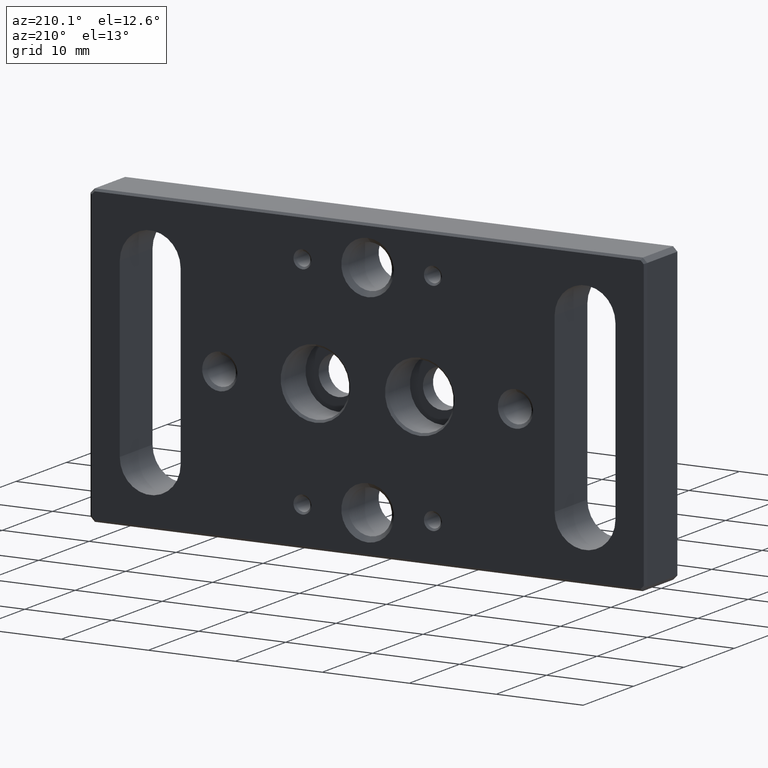
[diagram: clean part render]
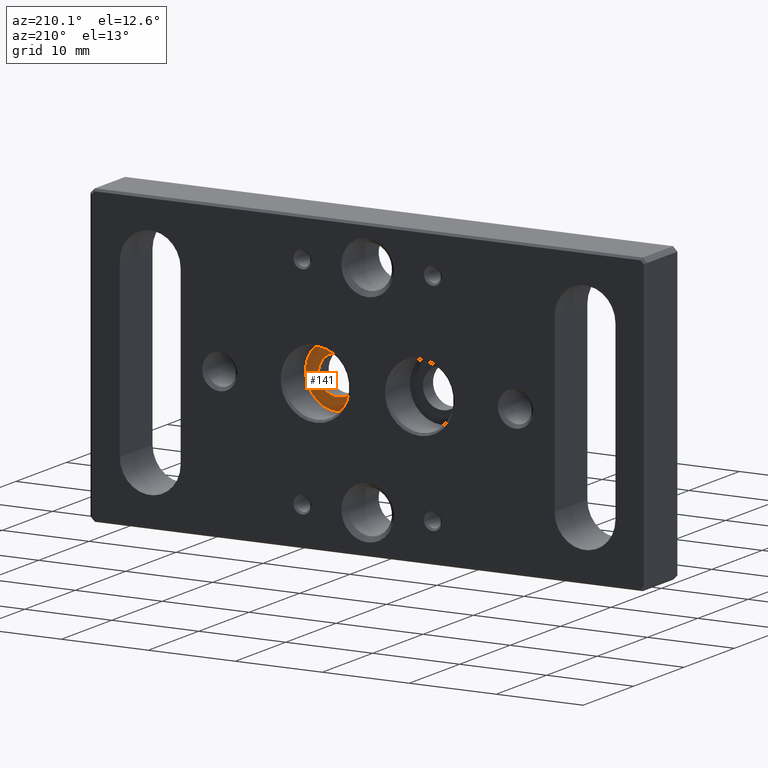
[diagram: same view with one face highlighted and labeled with its STEP entity id]
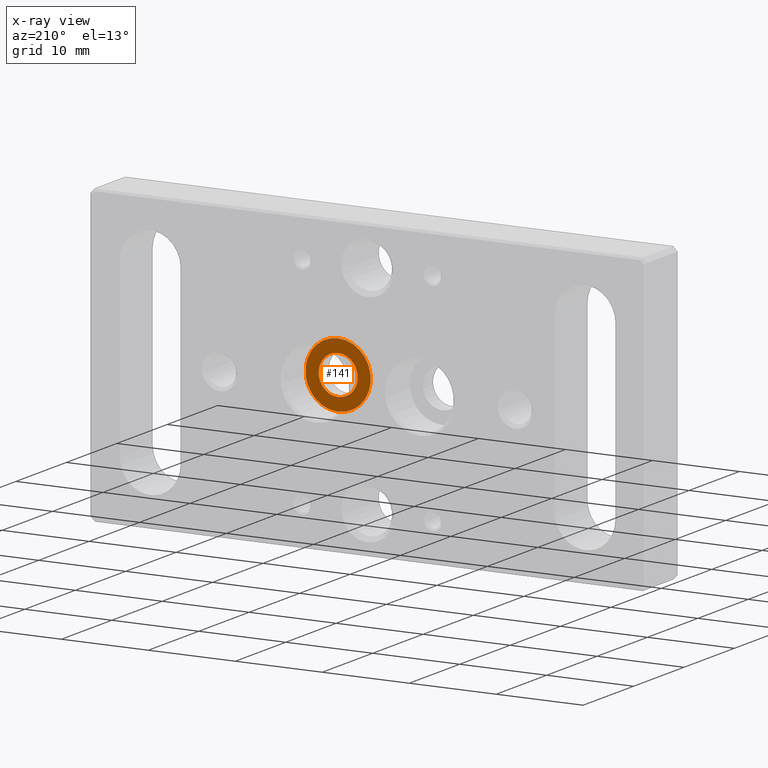
[diagram: x-ray of the same camera — body ghosted, the highlighted face saturated]
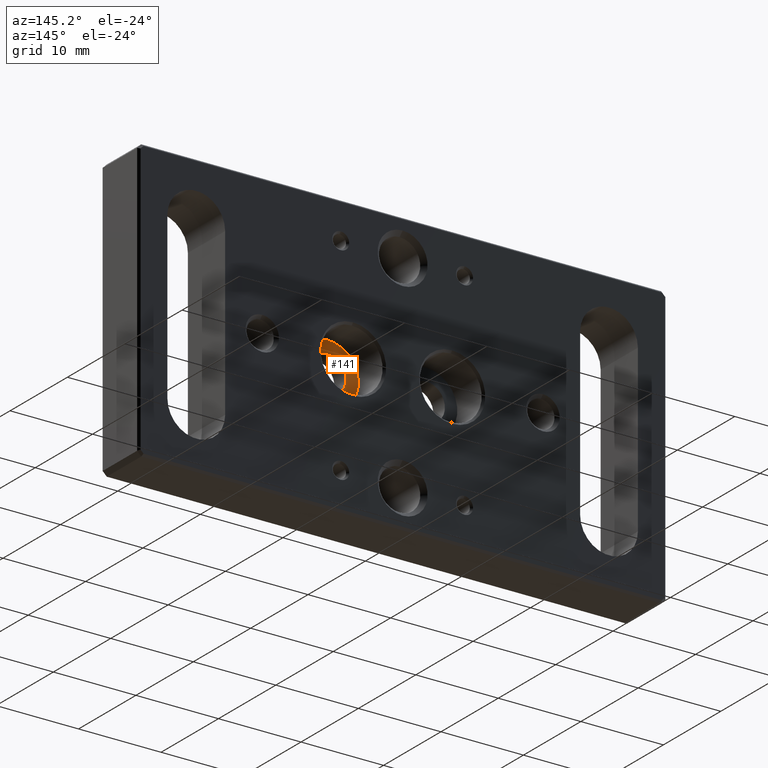
[diagram: same view with one face highlighted and labeled with its STEP entity id]
A machine part, auxiliary view. The second image highlights one B-rep face of the part: STEP entity #141.
The next image is the same camera in x-ray: the body ghosted, the highlighted face saturated — about 0% of this face is hidden behind the body in this view.
A second angle (auxiliary view) of the same face is appended — the face is thin or edge-on in the first view.
In plain terms, the highlighted planar face has unit normal (0, -1, 0).
Its self-contained STEP definition (entity closure, byte-faithful):
#141 = ADVANCED_FACE ( 'NONE', ( #1182, #941 ), #1090, .F. ) ;
#181 = AXIS2_PLACEMENT_3D ( 'NONE', #559, #803, #683 ) ;
#212 = CARTESIAN_POINT ( 'NONE',  ( 5.999999999999999112, 2.000000000000000000, 2.250000000000011546 ) ) ;
#271 = AXIS2_PLACEMENT_3D ( 'NONE', #523, #1031, #1541 ) ;
#287 = EDGE_CURVE ( 'NONE', #703, #703, #896, .T. ) ;
#523 = CARTESIAN_POINT ( 'NONE',  ( 5.999999999999999112, 2.000000000000000000, 0.000000000000000000 ) ) ;
#557 = CARTESIAN_POINT ( 'NONE',  ( 8.250000000000010658, 2.000000000000000000, 0.000000000000000000 ) ) ;
#559 = CARTESIAN_POINT ( 'NONE',  ( 5.999999999999999112, 2.000000000000000000, 0.000000000000000000 ) ) ;
#621 = ORIENTED_EDGE ( 'NONE', *, *, #287, .F. ) ;
#683 = DIRECTION ( 'NONE',  ( 0.000000000000000000, 0.000000000000000000, 1.000000000000000000 ) ) ;
#692 = EDGE_LOOP ( 'NONE', ( #621 ) ) ;
#703 = VERTEX_POINT ( 'NONE', #212 ) ;
#803 = DIRECTION ( 'NONE',  ( -0.000000000000000000, 1.000000000000000000, -0.000000000000000000 ) ) ;
#896 = CIRCLE ( 'NONE', #181, 2.250000000000011546 ) ;
#941 = FACE_OUTER_BOUND ( 'NONE', #1261, .T. ) ;
#942 = ORIENTED_EDGE ( 'NONE', *, *, #1017, .T. ) ;
#1017 = EDGE_CURVE ( 'NONE', #1489, #1489, #1490, .T. ) ;
#1031 = DIRECTION ( 'NONE',  ( -0.000000000000000000, 1.000000000000000000, -0.000000000000000000 ) ) ;
#1055 = DIRECTION ( 'NONE',  ( 0.000000000000000000, -0.000000000000000000, -1.000000000000000000 ) ) ;
#1090 = PLANE ( 'NONE',  #1289 ) ;
#1182 = FACE_BOUND ( 'NONE', #692, .T. ) ;
#1237 = CARTESIAN_POINT ( 'NONE',  ( 5.999999999999999112, 2.000000000000000000, 3.750000000000012879 ) ) ;
#1261 = EDGE_LOOP ( 'NONE', ( #942 ) ) ;
#1289 = AXIS2_PLACEMENT_3D ( 'NONE', #557, #1445, #1055 ) ;
#1445 = DIRECTION ( 'NONE',  ( 0.000000000000000000, -1.000000000000000000, 0.000000000000000000 ) ) ;
#1489 = VERTEX_POINT ( 'NONE', #1237 ) ;
#1490 = CIRCLE ( 'NONE', #271, 3.750000000000012879 ) ;
#1541 = DIRECTION ( 'NONE',  ( 0.000000000000000000, 0.000000000000000000, 1.000000000000000000 ) ) ;